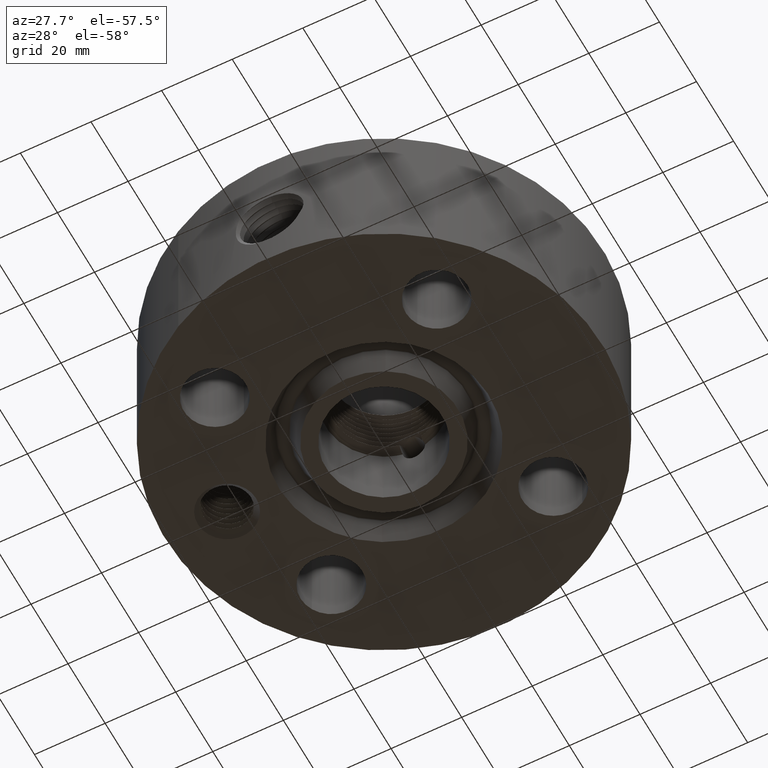
[diagram: clean part render]
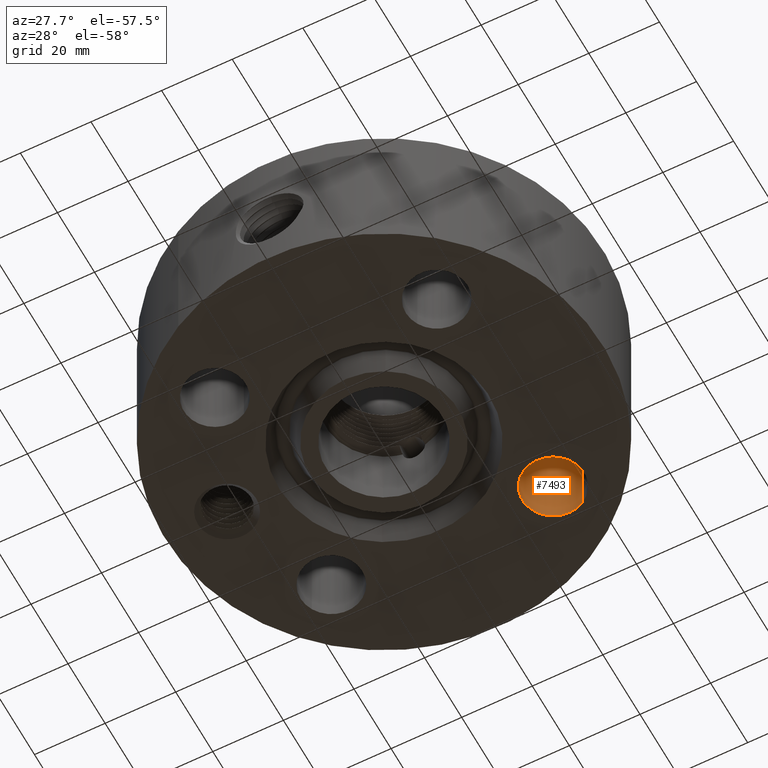
[diagram: same view with one face highlighted and labeled with its STEP entity id]
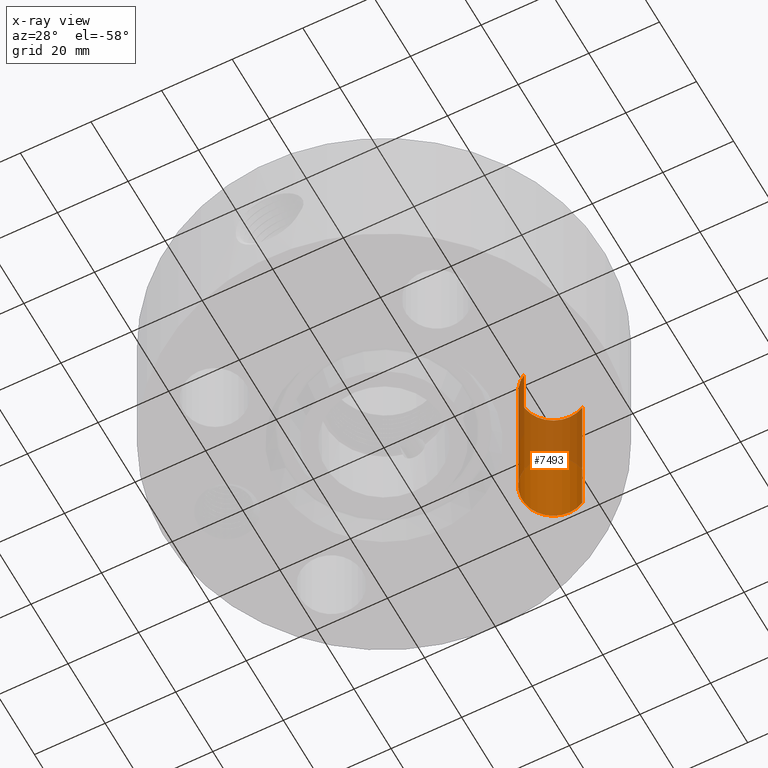
[diagram: x-ray of the same camera — body ghosted, the highlighted face saturated]
A machine part, auxiliary view. The second image highlights one B-rep face of the part: STEP entity #7493.
The next image is the same camera in x-ray: the body ghosted, the highlighted face saturated — about 47% of this face is hidden behind the body in this view.
In plain terms, the highlighted cylindrical surface (edge-blend (fillet) strip) has radius 8.763 mm, axis along (0, 0, -1).
Its self-contained STEP definition (entity closure, byte-faithful):
#6208=AXIS2_PLACEMENT_3D('Circle Axis2P3D',#6206,#6207,$) ;
#7466=AXIS2_PLACEMENT_3D('Cylinder Axis2P3D',#7463,#7464,#7465) ;
#7484=AXIS2_PLACEMENT_3D('Circle Axis2P3D',#7482,#7483,$) ;
#6206=CARTESIAN_POINT('Axis2P3D Location',(1.23743686708,1.23743686708,0.)) ;
#6210=CARTESIAN_POINT('Vertex',(1.07203505626,0.934670883228,0.)) ;
#6212=CARTESIAN_POINT('Vertex',(1.4028386779,1.54020285093,0.)) ;
#7463=CARTESIAN_POINT('Axis2P3D Location',(1.23743686708,1.23743686708,1.74606299213)) ;
#7468=CARTESIAN_POINT('Line Origine',(1.07203505626,0.934670883228,0.875000000003)) ;
#7472=CARTESIAN_POINT('Vertex',(1.07203505626,0.934670883228,1.75000000001)) ;
#7475=CARTESIAN_POINT('Line Origine',(1.4028386779,1.54020285093,0.875000000003)) ;
#7479=CARTESIAN_POINT('Vertex',(1.4028386779,1.54020285093,1.75000000001)) ;
#7482=CARTESIAN_POINT('Axis2P3D Location',(1.23743686708,1.23743686708,1.75000000001)) ;
#6207=DIRECTION('Axis2P3D Direction',(0.,0.,-0.0393700787402)) ;
#7464=DIRECTION('Axis2P3D Direction',(0.,0.,-0.0393700787402)) ;
#7465=DIRECTION('Axis2P3D XDirection',(0.0188750212049,0.0345504945626,0.)) ;
#7469=DIRECTION('Vector Direction',(0.,0.,-0.0393700787402)) ;
#7476=DIRECTION('Vector Direction',(0.,0.,-0.0393700787402)) ;
#7483=DIRECTION('Axis2P3D Direction',(0.,0.,-0.0393700787402)) ;
#7470=VECTOR('Line Direction',#7469,0.0393700787402) ;
#7477=VECTOR('Line Direction',#7476,0.0393700787402) ;
#7488=ORIENTED_EDGE('',*,*,#7474,.F.) ;
#7489=ORIENTED_EDGE('',*,*,#6214,.T.) ;
#7490=ORIENTED_EDGE('',*,*,#7481,.T.) ;
#7491=ORIENTED_EDGE('',*,*,#7486,.F.) ;
#7493=ADVANCED_FACE('PartBody',(#7492),#7467,.F.) ;
#6209=CIRCLE('generated circle',#6208,0.345000000001) ;
#7485=CIRCLE('generated circle',#7484,0.345000000001) ;
#7467=CYLINDRICAL_SURFACE('generated cylinder',#7466,0.345000000001) ;
#6214=EDGE_CURVE('',#6211,#6213,#6209,.T.) ;
#7474=EDGE_CURVE('',#6211,#7473,#7471,.F.) ;
#7481=EDGE_CURVE('',#6213,#7480,#7478,.F.) ;
#7486=EDGE_CURVE('',#7473,#7480,#7485,.T.) ;
#7487=EDGE_LOOP('',(#7488,#7489,#7490,#7491)) ;
#7492=FACE_OUTER_BOUND('',#7487,.T.) ;
#7471=LINE('Line',#7468,#7470) ;
#7478=LINE('Line',#7475,#7477) ;
#6211=VERTEX_POINT('',#6210) ;
#6213=VERTEX_POINT('',#6212) ;
#7473=VERTEX_POINT('',#7472) ;
#7480=VERTEX_POINT('',#7479) ;